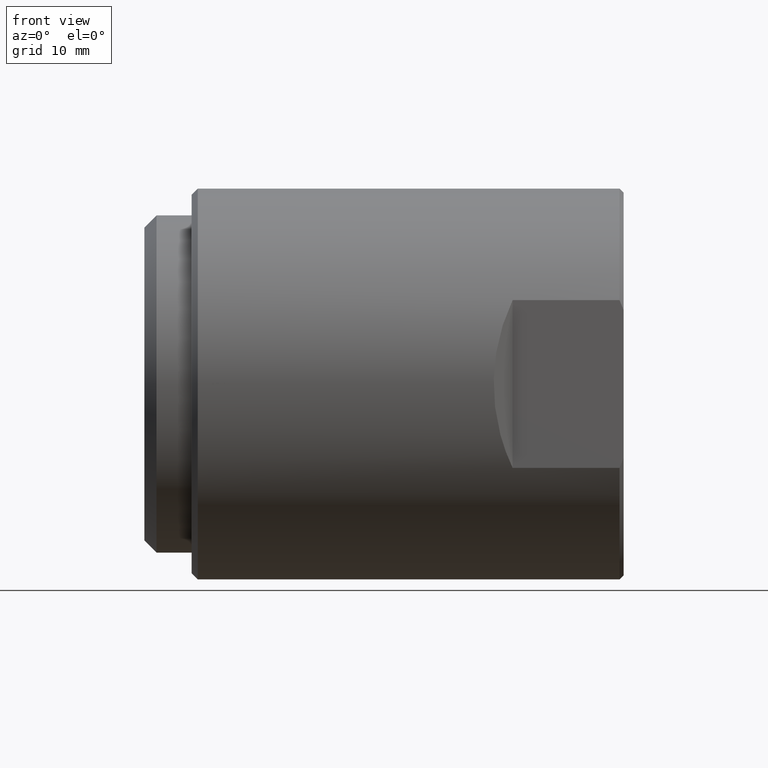
[diagram: clean part render]
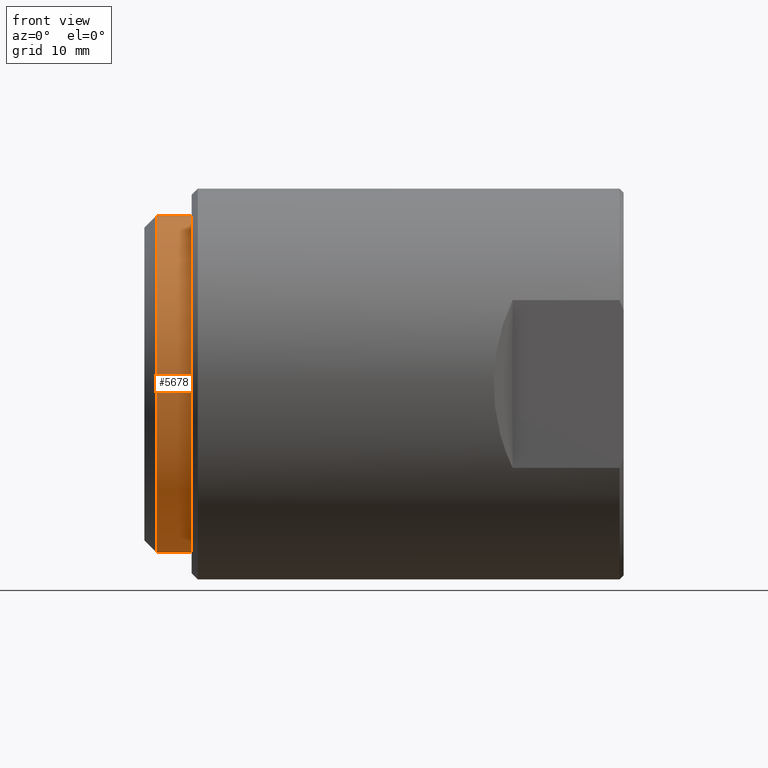
[diagram: same view with one face highlighted and labeled with its STEP entity id]
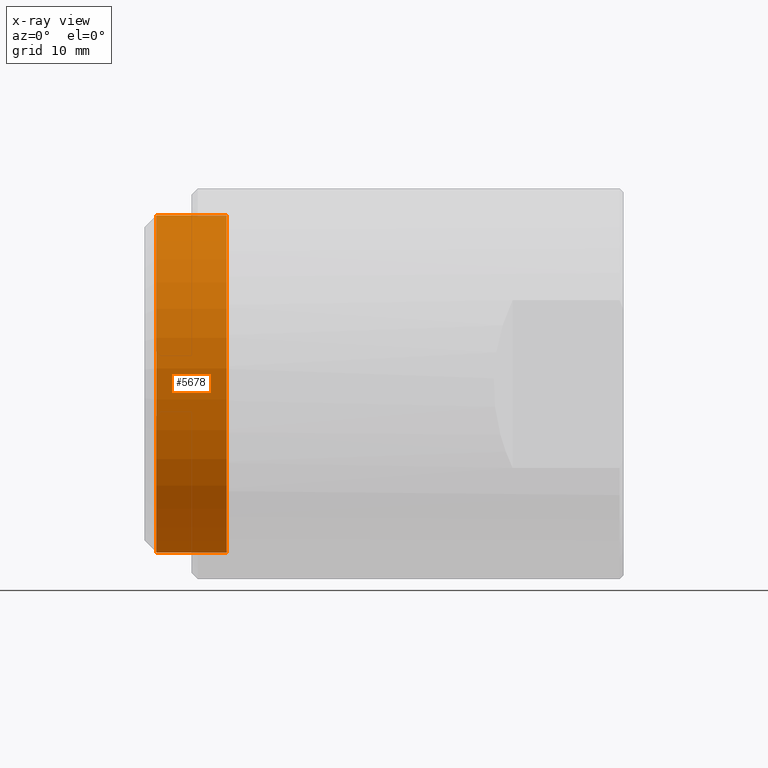
[diagram: x-ray of the same camera — body ghosted, the highlighted face saturated]
A machine part, front view. The second image highlights one B-rep face of the part: STEP entity #5678.
The next image is the same camera in x-ray: the body ghosted, the highlighted face saturated — about 1% of this face is hidden behind the body in this view.
In plain terms, the highlighted cylindrical surface (partial cylindrical patch) has radius 21.2344 mm, axis along (-1, -0, -0).
Its self-contained STEP definition (entity closure, byte-faithful):
#351 = EDGE_CURVE ( 'NONE', #3736, #9995, #2226, .T. ) ;
#920 = AXIS2_PLACEMENT_3D ( 'NONE', #1676, #9286, #3746 ) ;
#1190 = CARTESIAN_POINT ( 'NONE',  ( 0.0000000000000000000, 0.0000000000000000000, 0.8360000000000000764 ) ) ;
#1227 = EDGE_CURVE ( 'NONE', #7271, #6202, #6009, .T. ) ;
#1676 = CARTESIAN_POINT ( 'NONE',  ( -0.2169999999999999707, 0.0000000000000000000, 0.0000000000000000000 ) ) ;
#2226 = LINE ( 'NONE', #1190, #10540 ) ;
#2429 = CARTESIAN_POINT ( 'NONE',  ( -0.5650000000000000577, 1.023804724087187356E-16, -0.8360000000000000764 ) ) ;
#2470 = DIRECTION ( 'NONE',  ( -1.000000000000000000, -0.0000000000000000000, -0.0000000000000000000 ) ) ;
#2640 = EDGE_CURVE ( 'NONE', #6202, #9995, #5150, .T. ) ;
#3641 = CYLINDRICAL_SURFACE ( 'NONE', #4290, 0.8360000000000000764 ) ;
#3736 = VERTEX_POINT ( 'NONE', #12846 ) ;
#3746 = DIRECTION ( 'NONE',  ( 0.0000000000000000000, 0.0000000000000000000, 1.000000000000000000 ) ) ;
#4290 = AXIS2_PLACEMENT_3D ( 'NONE', #12941, #2470, #7811 ) ;
#5004 = CARTESIAN_POINT ( 'NONE',  ( -0.2169999999999999707, 1.023804724087187233E-16, -0.8359999999999998543 ) ) ;
#5150 = CIRCLE ( 'NONE', #12246, 0.8360000000000000764 ) ;
#5403 = DIRECTION ( 'NONE',  ( -1.000000000000000000, -0.0000000000000000000, -0.0000000000000000000 ) ) ;
#5678 = ADVANCED_FACE ( 'NONE', ( #11984 ), #3641, .T. ) ;
#5772 = CIRCLE ( 'NONE', #920, 0.8359999999999998543 ) ;
#6009 = LINE ( 'NONE', #13080, #10331 ) ;
#6202 = VERTEX_POINT ( 'NONE', #2429 ) ;
#6263 = CARTESIAN_POINT ( 'NONE',  ( -0.5650000000000000577, 0.0000000000000000000, 0.8360000000000000764 ) ) ;
#6357 = EDGE_CURVE ( 'NONE', #7271, #3736, #5772, .T. ) ;
#6694 = DIRECTION ( 'NONE',  ( -1.000000000000000000, -0.0000000000000000000, -0.0000000000000000000 ) ) ;
#6821 = ORIENTED_EDGE ( 'NONE', *, *, #2640, .F. ) ;
#6904 = CARTESIAN_POINT ( 'NONE',  ( -0.5650000000000000577, 0.0000000000000000000, 0.0000000000000000000 ) ) ;
#7271 = VERTEX_POINT ( 'NONE', #5004 ) ;
#7753 = EDGE_LOOP ( 'NONE', ( #10604, #10691, #10692, #6821 ) ) ;
#7811 = DIRECTION ( 'NONE',  ( 0.0000000000000000000, 0.0000000000000000000, 1.000000000000000000 ) ) ;
#8077 = DIRECTION ( 'NONE',  ( 0.0000000000000000000, 0.0000000000000000000, 1.000000000000000000 ) ) ;
#9286 = DIRECTION ( 'NONE',  ( -1.000000000000000000, -0.0000000000000000000, -0.0000000000000000000 ) ) ;
#9995 = VERTEX_POINT ( 'NONE', #6263 ) ;
#10331 = VECTOR ( 'NONE', #6694, 39.37007874015748143 ) ;
#10540 = VECTOR ( 'NONE', #5403, 39.37007874015748143 ) ;
#10604 = ORIENTED_EDGE ( 'NONE', *, *, #1227, .F. ) ;
#10691 = ORIENTED_EDGE ( 'NONE', *, *, #6357, .T. ) ;
#10692 = ORIENTED_EDGE ( 'NONE', *, *, #351, .T. ) ;
#11215 = DIRECTION ( 'NONE',  ( -1.000000000000000000, -0.0000000000000000000, -0.0000000000000000000 ) ) ;
#11984 = FACE_OUTER_BOUND ( 'NONE', #7753, .T. ) ;
#12246 = AXIS2_PLACEMENT_3D ( 'NONE', #6904, #11215, #8077 ) ;
#12846 = CARTESIAN_POINT ( 'NONE',  ( -0.2169999999999999707, 0.0000000000000000000, 0.8359999999999998543 ) ) ;
#12941 = CARTESIAN_POINT ( 'NONE',  ( 0.0000000000000000000, 0.0000000000000000000, 0.0000000000000000000 ) ) ;
#13080 = CARTESIAN_POINT ( 'NONE',  ( 0.0000000000000000000, 1.023804724087187356E-16, -0.8360000000000000764 ) ) ;